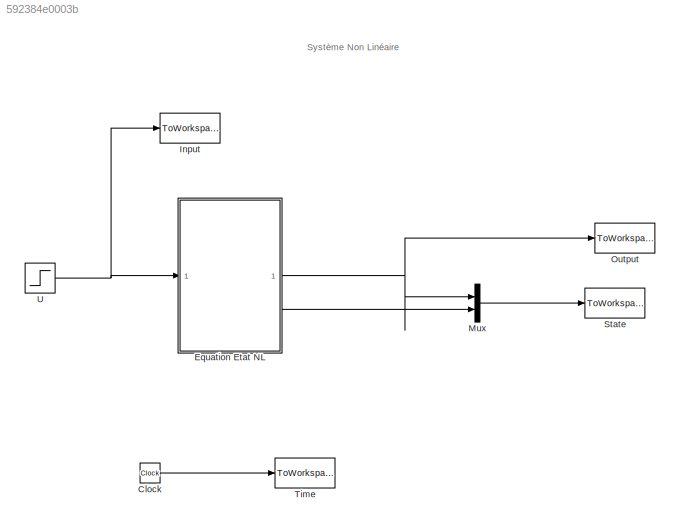
MODEL mdl_592384e0003b
KIND model
CONFIG AbsTol = auto
CONFIG EnableMultiTasking = on
CONFIG FixedStep = auto
CONFIG MaxStep = auto
CONFIG MinStep = auto
CONFIG RelTol = 1e-3
CONFIG SampleTimeConstraint = Unconstrained
CONFIG SolverName = ode45
CONFIG StartTime = 0.0
CONFIG StopTime = 10.0
BLOCK [Clock] Clock
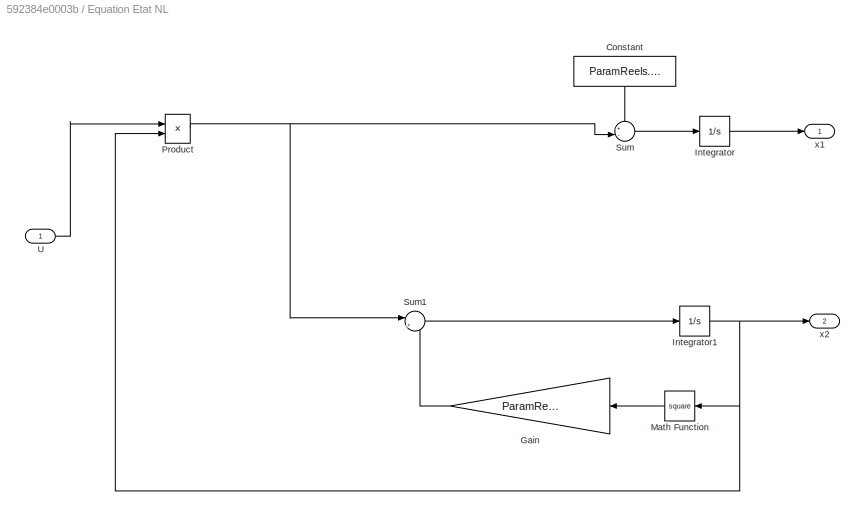
BLOCK [SubSystem] Equation Etat NL
BLOCK [Constant] Equation Etat NL/Constant
  NameLocation = left
  Value = ParamReels.beta
BLOCK [Gain] Equation Etat NL/Gain
  Gain = ParamReels.alpha
  OutDataTypeStr = Inherit: Same as input
  ParamDataTypeStr = Inherit: Same as input
  SaturateOnIntegerOverflow = on
BLOCK [Integrator] Equation Etat NL/Integrator
  InitialCondition = ParamReels.X0(1,1)
BLOCK [Integrator] Equation Etat NL/Integrator1
  InitialCondition = ParamReels.X0(2,1)
BLOCK [Math] Equation Etat NL/Math Function
  Operator = square
  SignedPower = on
BLOCK [Product] Equation Etat NL/Product
  InputSameDT = on
  OutDataTypeStr = Inherit: Same as first input
  RndMeth = Zero
  SaturateOnIntegerOverflow = on
BLOCK [Sum] Equation Etat NL/Sum
  InputSameDT = on
  Inputs = +-|
  OutDataTypeStr = Inherit: Same as first input
  SaturateOnIntegerOverflow = on
BLOCK [Sum] Equation Etat NL/Sum1
  InputSameDT = on
  Inputs = |+-
  OutDataTypeStr = Inherit: Same as first input
  SaturateOnIntegerOverflow = on
BLOCK [Inport] Equation Etat NL/U
BLOCK [Outport] Equation Etat NL/x1
BLOCK [Outport] Equation Etat NL/x2
  Port = 2
BLOCK [ToWorkspace] Input
  MaxDataPoints = inf
  SampleTime = ParamReels.Te
  VariableName = UReel
BLOCK [Mux] Mux
  DisplayOption = bar
  Inputs = 2
BLOCK [ToWorkspace] Output
  MaxDataPoints = inf
  SampleTime = ParamReels.Te
  VariableName = YReel
BLOCK [ToWorkspace] State
  MaxDataPoints = inf
  SampleTime = ParamReels.Te
  VariableName = XReel
BLOCK [ToWorkspace] Time
  MaxDataPoints = inf
  SampleTime = ParamReels.Te
  VariableName = Tps
BLOCK [Step] U
  After = ParamReels.Equilibre.Ue+1
  Before = ParamReels.Equilibre.Ue
  SampleTime = 0
  Time = 4
ANNOTATION (root): Système Non Linéaire
LINE Clock:1 -> Time:1
LINE Equation Etat NL/Constant:1 -> Equation Etat NL/Sum:1
LINE Equation Etat NL/Gain:1 -> Equation Etat NL/Sum1:2
NET Equation Etat NL/Integrator1:1 -> Equation Etat NL/Math Function:1, Equation Etat NL/Product:2, Equation Etat NL/x2:1
LINE Equation Etat NL/Integrator:1 -> Equation Etat NL/x1:1
LINE Equation Etat NL/Math Function:1 -> Equation Etat NL/Gain:1
NET Equation Etat NL/Product:1 -> Equation Etat NL/Sum1:1, Equation Etat NL/Sum:2
LINE Equation Etat NL/Sum1:1 -> Equation Etat NL/Integrator1:1
LINE Equation Etat NL/Sum:1 -> Equation Etat NL/Integrator:1
LINE Equation Etat NL/U:1 -> Equation Etat NL/Product:1
NET Equation Etat NL:1 -> Mux:1, Output:1
LINE Equation Etat NL:2 -> Mux:2
LINE Mux:1 -> State:1
NET U:1 -> Equation Etat NL:1, Input:1
note: NET lines group one-source signal fan-out (src -> all destinations, sorted); 1:1 wires keep LINE
